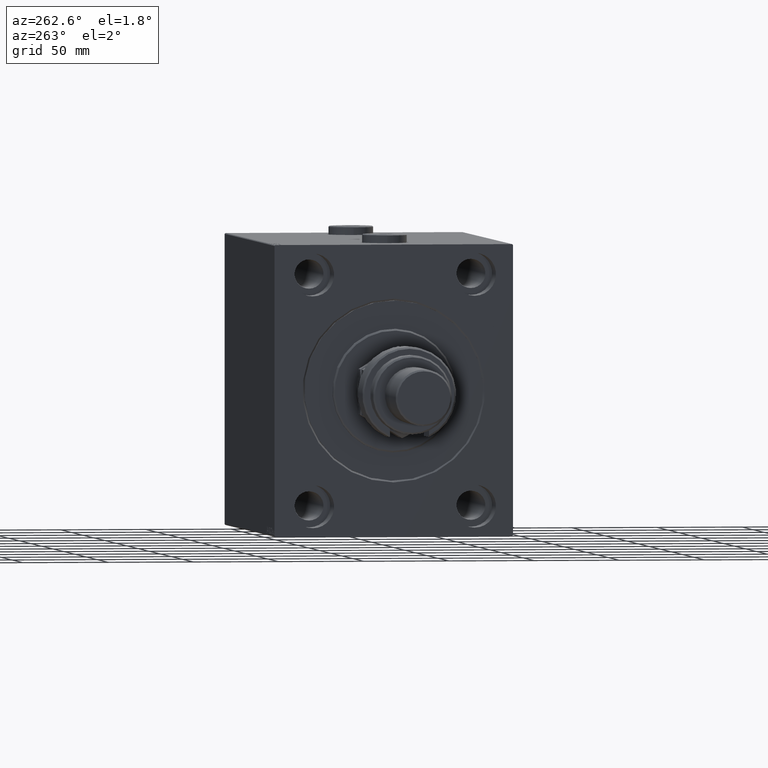
[diagram: clean part render]
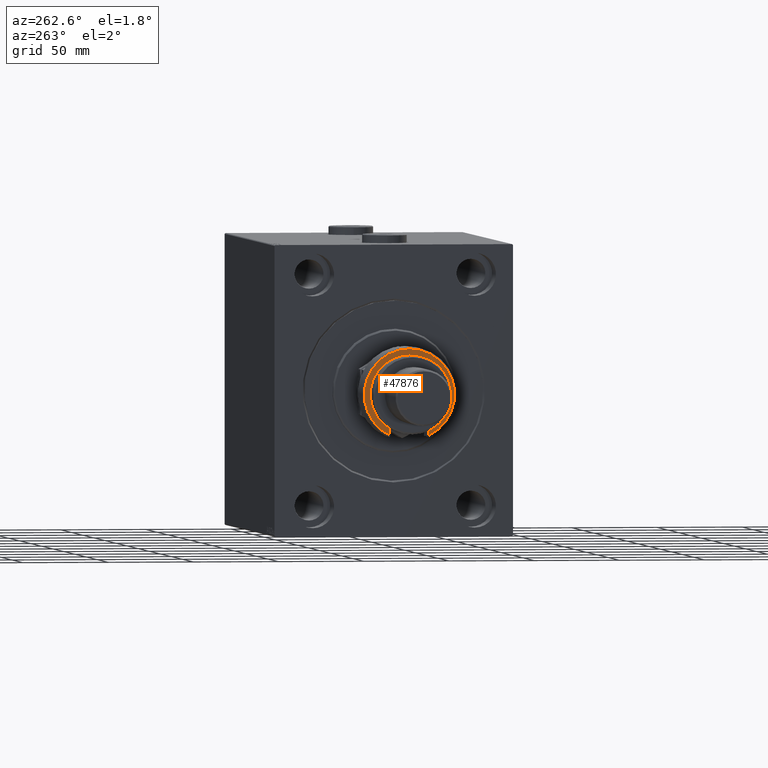
[diagram: same view with one face highlighted and labeled with its STEP entity id]
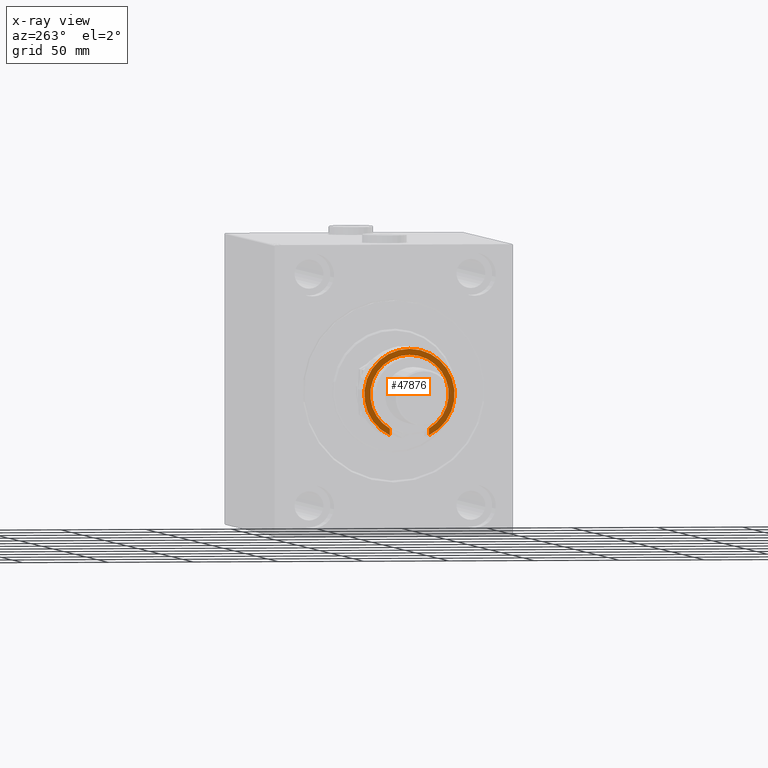
[diagram: x-ray of the same camera — body ghosted, the highlighted face saturated]
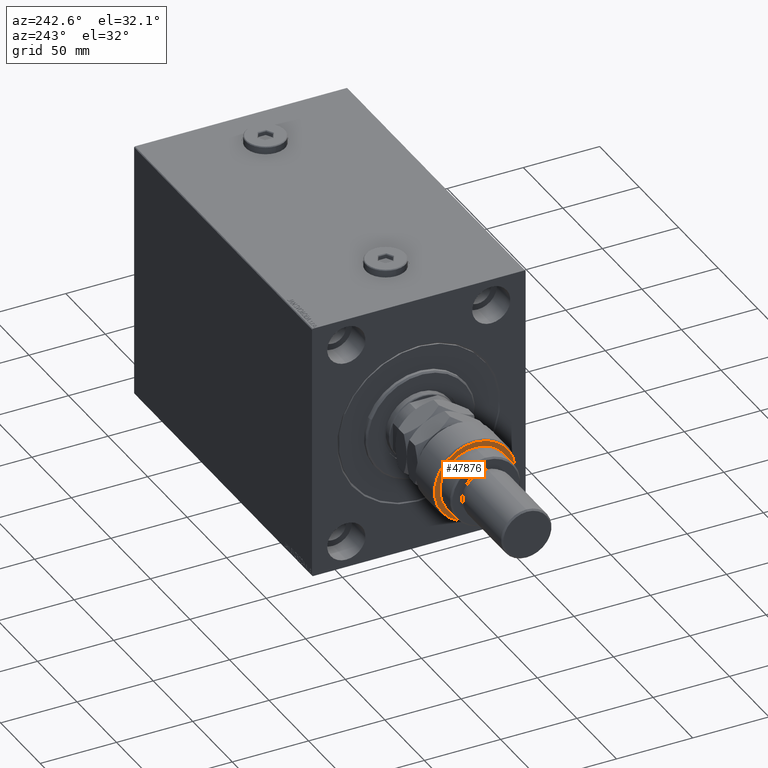
[diagram: same view with one face highlighted and labeled with its STEP entity id]
A machine part, auxiliary view. The second image highlights one B-rep face of the part: STEP entity #47876.
The next image is the same camera in x-ray: the body ghosted, the highlighted face saturated — about 9% of this face is hidden behind the body in this view.
A second angle (auxiliary view) of the same face is appended — the face is thin or edge-on in the first view.
In plain terms, the highlighted planar face has unit normal (-1, 0, 0).
Its self-contained STEP definition (entity closure, byte-faithful):
#780 = EDGE_CURVE ( 'NONE', #7724, #22457, #3370, .T. ) ;
#1262 = VECTOR ( 'NONE', #7604, 1000.000000000000000 ) ;
#3370 = CIRCLE ( 'NONE', #30638, 23.00000000000000000 ) ;
#5831 = CARTESIAN_POINT ( 'NONE',  ( 0.000000000000000000, 0.000000000000000000, 23.00000000000000000 ) ) ;
#6648 = LINE ( 'NONE', #36419, #1262 ) ;
#7518 = VERTEX_POINT ( 'NONE', #16819 ) ;
#7604 = DIRECTION ( 'NONE',  ( -1.000000000000000000, 0.000000000000000000, 0.000000000000000000 ) ) ;
#7724 = VERTEX_POINT ( 'NONE', #15833 ) ;
#8455 = EDGE_CURVE ( 'NONE', #21956, #7518, #44782, .T. ) ;
#9133 = VECTOR ( 'NONE', #28412, 1000.000000000000000 ) ;
#9318 = ORIENTED_EDGE ( 'NONE', *, *, #16733, .F. ) ;
#10149 = CARTESIAN_POINT ( 'NONE',  ( -19.91858428704208706, 11.50000000000000000, 23.00000000000000000 ) ) ;
#10810 = DIRECTION ( 'NONE',  ( 0.000000000000000000, 0.000000000000000000, 1.000000000000000000 ) ) ;
#12917 = DIRECTION ( 'NONE',  ( 1.000000000000000000, 0.000000000000000000, 0.000000000000000000 ) ) ;
#15739 = ORIENTED_EDGE ( 'NONE', *, *, #26370, .F. ) ;
#15833 = CARTESIAN_POINT ( 'NONE',  ( -19.91858428704208706, -11.50000000000000000, 23.00000000000000000 ) ) ;
#15938 = AXIS2_PLACEMENT_3D ( 'NONE', #20242, #36091, #47078 ) ;
#16324 = CIRCLE ( 'NONE', #26456, 23.00000000000000000 ) ;
#16733 = EDGE_CURVE ( 'NONE', #28828, #7518, #6648, .T. ) ;
#16819 = CARTESIAN_POINT ( 'NONE',  ( -23.87467277262668475, 11.50000000000000000, 23.00000000000000000 ) ) ;
#18978 = CARTESIAN_POINT ( 'NONE',  ( 23.00000000000000000, 2.816687638038912352E-15, 23.00000000000000000 ) ) ;
#19765 = CARTESIAN_POINT ( 'NONE',  ( -23.87467277262668475, -11.50000000000000000, 23.00000000000000000 ) ) ;
#20176 = EDGE_CURVE ( 'NONE', #21956, #7724, #25240, .T. ) ;
#20242 = CARTESIAN_POINT ( 'NONE',  ( 0.000000000000000000, 0.000000000000000000, 23.00000000000000000 ) ) ;
#21956 = VERTEX_POINT ( 'NONE', #19765 ) ;
#22457 = VERTEX_POINT ( 'NONE', #18978 ) ;
#24636 = EDGE_LOOP ( 'NONE', ( #33393, #34961, #9318, #15739, #44881 ) ) ;
#25226 = DIRECTION ( 'NONE',  ( 1.000000000000000000, 0.000000000000000000, 0.000000000000000000 ) ) ;
#25240 = LINE ( 'NONE', #36692, #9133 ) ;
#26370 = EDGE_CURVE ( 'NONE', #22457, #28828, #16324, .T. ) ;
#26456 = AXIS2_PLACEMENT_3D ( 'NONE', #5831, #46356, #12917 ) ;
#28412 = DIRECTION ( 'NONE',  ( 1.000000000000000000, 0.000000000000000000, -0.000000000000000000 ) ) ;
#28828 = VERTEX_POINT ( 'NONE', #10149 ) ;
#30638 = AXIS2_PLACEMENT_3D ( 'NONE', #32520, #35949, #40091 ) ;
#31537 = AXIS2_PLACEMENT_3D ( 'NONE', #47672, #10810, #25226 ) ;
#32520 = CARTESIAN_POINT ( 'NONE',  ( 0.000000000000000000, 0.000000000000000000, 23.00000000000000000 ) ) ;
#33393 = ORIENTED_EDGE ( 'NONE', *, *, #20176, .F. ) ;
#34961 = ORIENTED_EDGE ( 'NONE', *, *, #8455, .T. ) ;
#35949 = DIRECTION ( 'NONE',  ( 0.000000000000000000, 0.000000000000000000, 1.000000000000000000 ) ) ;
#36091 = DIRECTION ( 'NONE',  ( 0.000000000000000000, 0.000000000000000000, 1.000000000000000000 ) ) ;
#36419 = CARTESIAN_POINT ( 'NONE',  ( 0.000000000000000000, 11.50000000000000000, 23.00000000000000000 ) ) ;
#36692 = CARTESIAN_POINT ( 'NONE',  ( 0.000000000000000000, -11.50000000000000000, 23.00000000000000000 ) ) ;
#39522 = FACE_OUTER_BOUND ( 'NONE', #24636, .T. ) ;
#40091 = DIRECTION ( 'NONE',  ( 1.000000000000000000, 0.000000000000000000, 0.000000000000000000 ) ) ;
#44782 = CIRCLE ( 'NONE', #31537, 26.50000000000003908 ) ;
#44881 = ORIENTED_EDGE ( 'NONE', *, *, #780, .F. ) ;
#46356 = DIRECTION ( 'NONE',  ( 0.000000000000000000, 0.000000000000000000, 1.000000000000000000 ) ) ;
#47078 = DIRECTION ( 'NONE',  ( 1.000000000000000000, 0.000000000000000000, -0.000000000000000000 ) ) ;
#47328 = PLANE ( 'NONE',  #15938 ) ;
#47672 = CARTESIAN_POINT ( 'NONE',  ( 0.000000000000000000, 0.000000000000000000, 23.00000000000000000 ) ) ;
#47876 = ADVANCED_FACE ( 'NONE', ( #39522 ), #47328, .T. ) ;